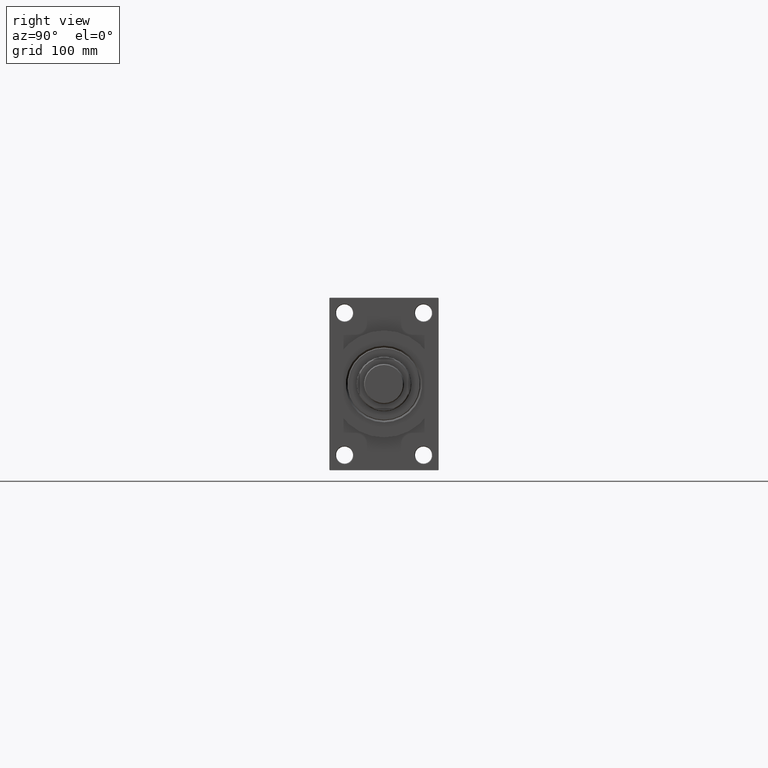
[diagram: clean part render]
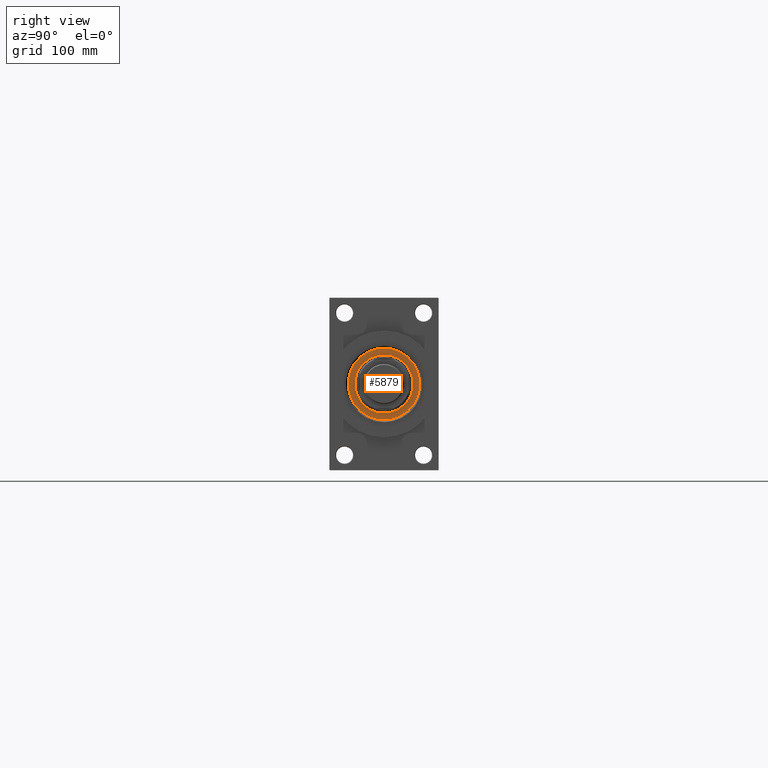
[diagram: same view with one face highlighted and labeled with its STEP entity id]
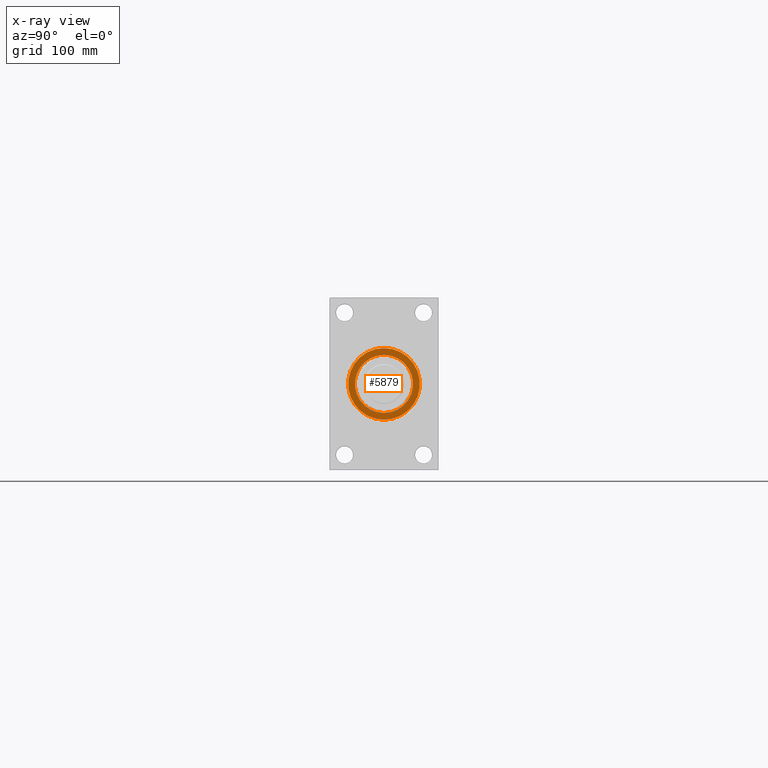
[diagram: x-ray of the same camera — body ghosted, the highlighted face saturated]
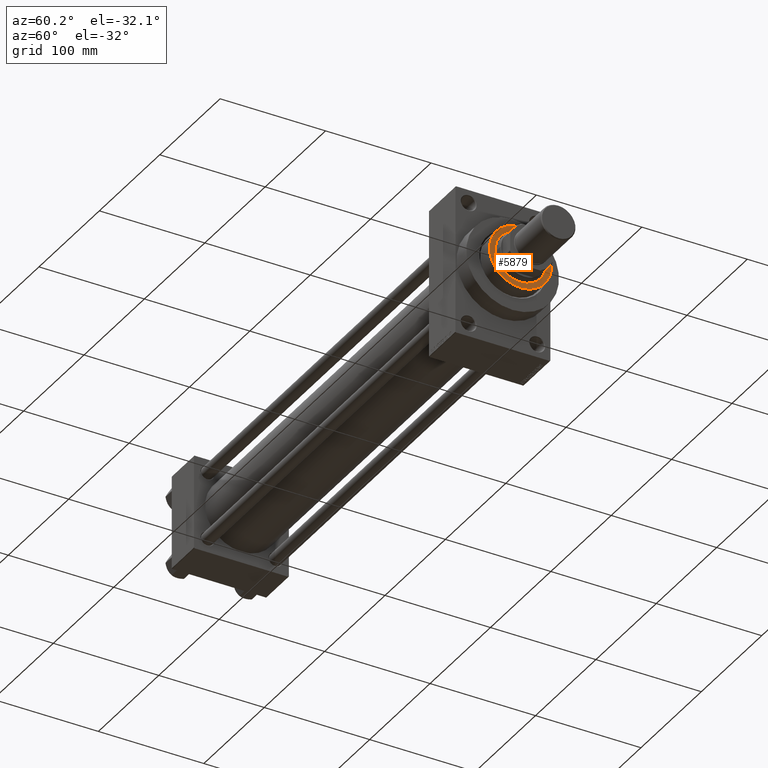
[diagram: same view with one face highlighted and labeled with its STEP entity id]
A machine part, right view. The second image highlights one B-rep face of the part: STEP entity #5879.
The next image is the same camera in x-ray: the body ghosted, the highlighted face saturated — about 0% of this face is hidden behind the body in this view.
A second angle (auxiliary view) of the same face is appended — the face is thin or edge-on in the first view.
In plain terms, the highlighted planar face has unit normal (1, -0, -0).
Its self-contained STEP definition (entity closure, byte-faithful):
#829 = CARTESIAN_POINT ( 'NONE',  ( 0.000000000000000000, 0.000000000000000000, 56.25999999999999801 ) ) ;
#3197 = DIRECTION ( 'NONE',  ( 1.000000000000000000, 0.000000000000000000, 0.000000000000000000 ) ) ;
#3524 = EDGE_CURVE ( 'NONE', #36924, #31520, #34794, .T. ) ;
#3886 = AXIS2_PLACEMENT_3D ( 'NONE', #32924, #25918, #47147 ) ;
#4360 = DIRECTION ( 'NONE',  ( 1.000000000000000000, 0.000000000000000000, 0.000000000000000000 ) ) ;
#5142 = DIRECTION ( 'NONE',  ( 1.000000000000000000, 0.000000000000000000, 0.000000000000000000 ) ) ;
#5444 = CIRCLE ( 'NONE', #39288, 24.00000000000000355 ) ;
#5879 = ADVANCED_FACE ( 'NONE', ( #38878, #37935 ), #45396, .T. ) ;
#6566 = CARTESIAN_POINT ( 'NONE',  ( -24.00000000000000355, 2.939152317953648289E-15, 56.25999999999999801 ) ) ;
#7854 = CARTESIAN_POINT ( 'NONE',  ( -29.50000000000001066, 0.000000000000000000, 56.25999999999999801 ) ) ;
#12106 = EDGE_CURVE ( 'NONE', #13695, #41803, #35001, .T. ) ;
#12687 = AXIS2_PLACEMENT_3D ( 'NONE', #28964, #44148, #3197 ) ;
#12855 = DIRECTION ( 'NONE',  ( 0.000000000000000000, 0.000000000000000000, 1.000000000000000000 ) ) ;
#13695 = VERTEX_POINT ( 'NONE', #7854 ) ;
#14243 = EDGE_LOOP ( 'NONE', ( #42056, #25978 ) ) ;
#14734 = DIRECTION ( 'NONE',  ( 0.000000000000000000, 0.000000000000000000, 1.000000000000000000 ) ) ;
#20982 = AXIS2_PLACEMENT_3D ( 'NONE', #31175, #24165, #38409 ) ;
#21511 = CARTESIAN_POINT ( 'NONE',  ( 29.50000000000001066, 3.643324227463376180E-15, 56.25999999999999801 ) ) ;
#22203 = ORIENTED_EDGE ( 'NONE', *, *, #3524, .F. ) ;
#24165 = DIRECTION ( 'NONE',  ( 0.000000000000000000, 0.000000000000000000, 1.000000000000000000 ) ) ;
#24667 = CIRCLE ( 'NONE', #3886, 29.50000000000001066 ) ;
#25797 = CARTESIAN_POINT ( 'NONE',  ( 0.000000000000000000, 0.000000000000000000, 56.25999999999999801 ) ) ;
#25918 = DIRECTION ( 'NONE',  ( 0.000000000000000000, 0.000000000000000000, 1.000000000000000000 ) ) ;
#25978 = ORIENTED_EDGE ( 'NONE', *, *, #29514, .T. ) ;
#28964 = CARTESIAN_POINT ( 'NONE',  ( 0.000000000000000000, 0.000000000000000000, 56.25999999999999801 ) ) ;
#29514 = EDGE_CURVE ( 'NONE', #41803, #13695, #24667, .T. ) ;
#31175 = CARTESIAN_POINT ( 'NONE',  ( 0.000000000000000000, 0.000000000000000000, 56.25999999999999801 ) ) ;
#31520 = VERTEX_POINT ( 'NONE', #43941 ) ;
#32924 = CARTESIAN_POINT ( 'NONE',  ( 0.000000000000000000, 0.000000000000000000, 56.25999999999999801 ) ) ;
#33374 = ORIENTED_EDGE ( 'NONE', *, *, #33479, .F. ) ;
#33479 = EDGE_CURVE ( 'NONE', #31520, #36924, #5444, .T. ) ;
#34794 = CIRCLE ( 'NONE', #44011, 24.00000000000000355 ) ;
#35001 = CIRCLE ( 'NONE', #12687, 29.50000000000001066 ) ;
#36924 = VERTEX_POINT ( 'NONE', #6566 ) ;
#37935 = FACE_OUTER_BOUND ( 'NONE', #14243, .T. ) ;
#38409 = DIRECTION ( 'NONE',  ( 1.000000000000000000, 0.000000000000000000, -0.000000000000000000 ) ) ;
#38563 = EDGE_LOOP ( 'NONE', ( #33374, #22203 ) ) ;
#38878 = FACE_BOUND ( 'NONE', #38563, .T. ) ;
#39288 = AXIS2_PLACEMENT_3D ( 'NONE', #829, #12855, #5142 ) ;
#41803 = VERTEX_POINT ( 'NONE', #21511 ) ;
#42056 = ORIENTED_EDGE ( 'NONE', *, *, #12106, .T. ) ;
#43941 = CARTESIAN_POINT ( 'NONE',  ( 24.00000000000000355, 0.000000000000000000, 56.25999999999999801 ) ) ;
#44011 = AXIS2_PLACEMENT_3D ( 'NONE', #25797, #14734, #4360 ) ;
#44148 = DIRECTION ( 'NONE',  ( 0.000000000000000000, 0.000000000000000000, 1.000000000000000000 ) ) ;
#45396 = PLANE ( 'NONE',  #20982 ) ;
#47147 = DIRECTION ( 'NONE',  ( 1.000000000000000000, 0.000000000000000000, 0.000000000000000000 ) ) ;